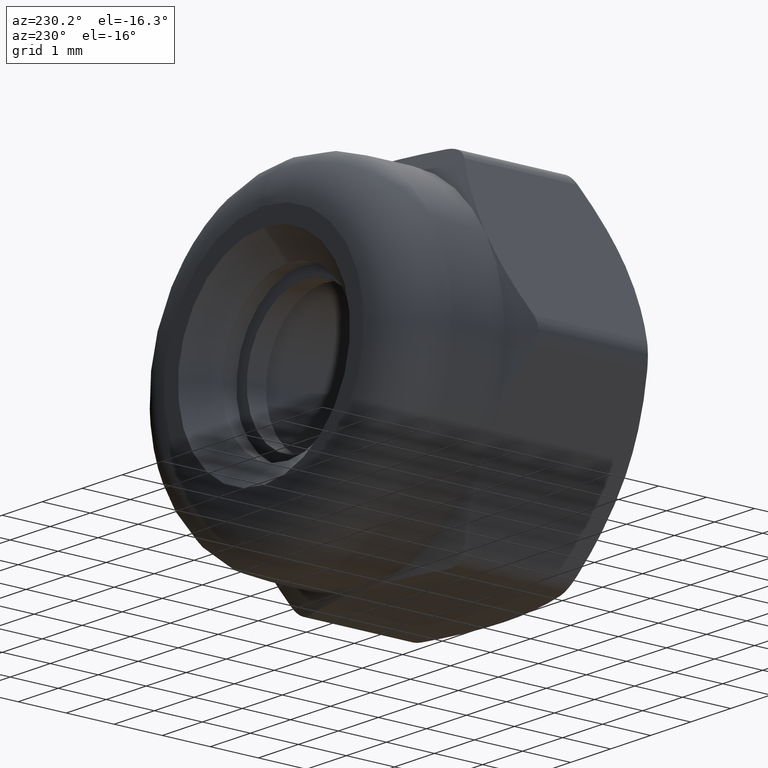
[diagram: clean part render]
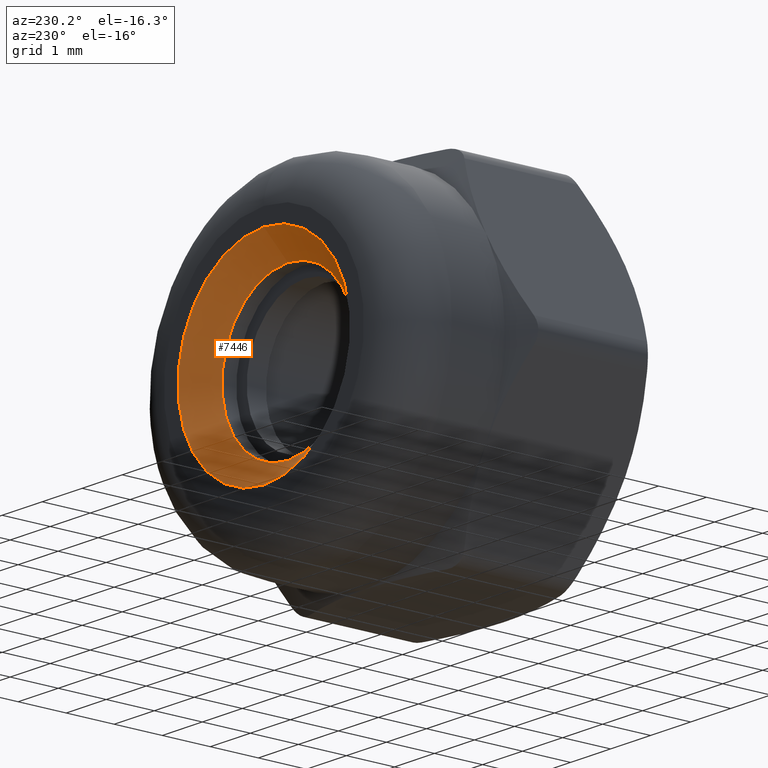
[diagram: same view with one face highlighted and labeled with its STEP entity id]
A machine part, auxiliary view. The second image highlights one B-rep face of the part: STEP entity #7446.
In plain terms, the highlighted conical surface has half-angle 45 deg.
Its self-contained STEP definition (entity closure, byte-faithful):
#338 = EDGE_CURVE ( 'NONE', #10649, #10649, #9980, .T. ) ;
#410 = CARTESIAN_POINT ( 'NONE',  ( 0.000000000000000000, 3.050000000000001599, 0.000000000000000000 ) ) ;
#472 = DIRECTION ( 'NONE',  ( 0.000000000000000000, 0.000000000000000000, 1.000000000000000000 ) ) ;
#1728 = DIRECTION ( 'NONE',  ( -0.000000000000000000, 1.000000000000000000, -0.000000000000000000 ) ) ;
#2136 = AXIS2_PLACEMENT_3D ( 'NONE', #410, #6537, #472 ) ;
#2691 = DIRECTION ( 'NONE',  ( 0.000000000000000000, 0.000000000000000000, 1.000000000000000000 ) ) ;
#3978 = AXIS2_PLACEMENT_3D ( 'NONE', #15135, #1728, #13725 ) ;
#4448 = CIRCLE ( 'NONE', #2136, 1.649999999999997913 ) ;
#4592 = FACE_BOUND ( 'NONE', #12875, .T. ) ;
#4594 = CARTESIAN_POINT ( 'NONE',  ( 0.000000000000000000, 3.550000000000000266, 2.149999999999994582 ) ) ;
#5661 = EDGE_CURVE ( 'NONE', #13503, #13503, #4448, .T. ) ;
#6123 = CONICAL_SURFACE ( 'NONE', #3978, 2.149999999999994582, 0.7853981633974465026 ) ;
#6479 = AXIS2_PLACEMENT_3D ( 'NONE', #8621, #14804, #2691 ) ;
#6537 = DIRECTION ( 'NONE',  ( -0.000000000000000000, 1.000000000000000000, -0.000000000000000000 ) ) ;
#7446 = ADVANCED_FACE ( 'NONE', ( #4592, #13713 ), #6123, .F. ) ;
#8123 = EDGE_LOOP ( 'NONE', ( #12006 ) ) ;
#8308 = CARTESIAN_POINT ( 'NONE',  ( 0.000000000000000000, 3.050000000000001599, 1.649999999999997913 ) ) ;
#8621 = CARTESIAN_POINT ( 'NONE',  ( 0.000000000000000000, 3.550000000000000266, 0.000000000000000000 ) ) ;
#9980 = CIRCLE ( 'NONE', #6479, 2.149999999999994582 ) ;
#10649 = VERTEX_POINT ( 'NONE', #4594 ) ;
#12006 = ORIENTED_EDGE ( 'NONE', *, *, #338, .F. ) ;
#12875 = EDGE_LOOP ( 'NONE', ( #15664 ) ) ;
#13503 = VERTEX_POINT ( 'NONE', #8308 ) ;
#13713 = FACE_OUTER_BOUND ( 'NONE', #8123, .T. ) ;
#13725 = DIRECTION ( 'NONE',  ( 0.000000000000000000, 0.000000000000000000, 1.000000000000000000 ) ) ;
#14804 = DIRECTION ( 'NONE',  ( -0.000000000000000000, -1.000000000000000000, -0.000000000000000000 ) ) ;
#15135 = CARTESIAN_POINT ( 'NONE',  ( 0.000000000000000000, 3.550000000000000266, 0.000000000000000000 ) ) ;
#15664 = ORIENTED_EDGE ( 'NONE', *, *, #5661, .F. ) ;